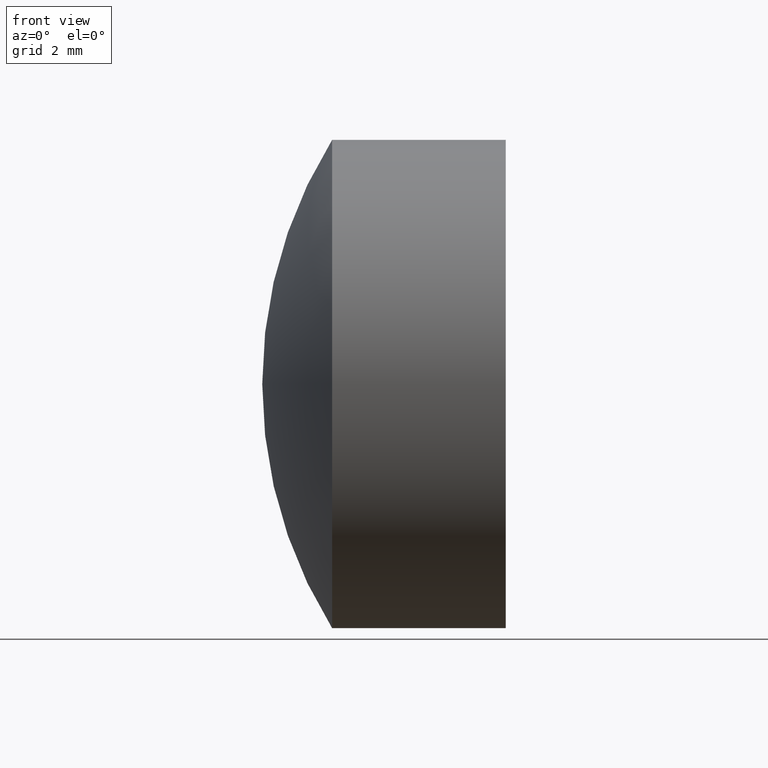
[diagram: clean part render]
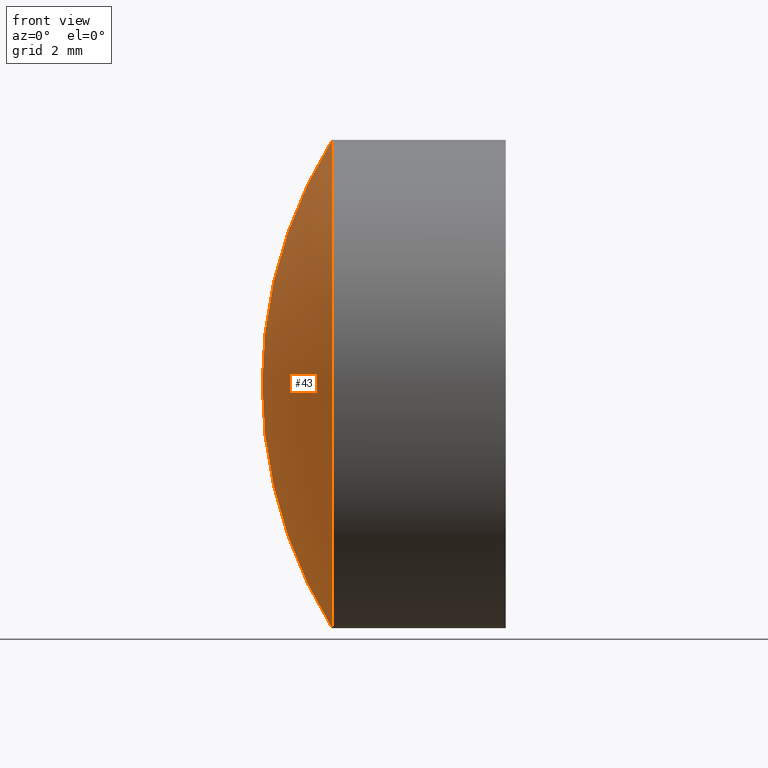
[diagram: same view with one face highlighted and labeled with its STEP entity id]
A machine part, front view. The second image highlights one B-rep face of the part: STEP entity #43.
In plain terms, the highlighted spherical surface has radius 12 mm.
Its self-contained STEP definition (entity closure, byte-faithful):
#4 = ORIENTED_EDGE ( 'NONE', *, *, #319, .T. ) ;
#6 = EDGE_CURVE ( 'NONE', #137, #88, #71, .T. ) ;
#8 = FACE_OUTER_BOUND ( 'NONE', #107, .T. ) ;
#9 = DIRECTION ( 'NONE',  ( 0.0000000000000000000, 1.224646799147353200E-016, -1.000000000000000000 ) ) ;
#10 = EDGE_CURVE ( 'NONE', #137, #84, #11, .T. ) ;
#11 = CIRCLE ( 'NONE', #161, 6.350000000000004100 ) ;
#43 = ADVANCED_FACE ( 'NONE', ( #8 ), #330, .T. ) ;
#65 = AXIS2_PLACEMENT_3D ( 'NONE', #91, #94, #338 ) ;
#71 = CIRCLE ( 'NONE', #65, 12.00000000000000200 ) ;
#78 = ORIENTED_EDGE ( 'NONE', *, *, #10, .T. ) ;
#84 = VERTEX_POINT ( 'NONE', #153 ) ;
#88 = VERTEX_POINT ( 'NONE', #234 ) ;
#91 = CARTESIAN_POINT ( 'NONE',  ( 32.52592517938953200, 0.0000000000000000000, 6.568687247857372100E-015 ) ) ;
#94 = DIRECTION ( 'NONE',  ( 0.0000000000000000000, 1.000000000000000000, -0.0000000000000000000 ) ) ;
#107 = EDGE_LOOP ( 'NONE', ( #78, #4, #334 ) ) ;
#137 = VERTEX_POINT ( 'NONE', #292 ) ;
#138 = CIRCLE ( 'NONE', #309, 12.00000000000000200 ) ;
#153 = CARTESIAN_POINT ( 'NONE',  ( 22.34371029263723700, -7.776507174585690200E-016, 6.350000000000005000 ) ) ;
#161 = AXIS2_PLACEMENT_3D ( 'NONE', #193, #283, #213 ) ;
#183 = AXIS2_PLACEMENT_3D ( 'NONE', #279, #208, #261 ) ;
#189 = CARTESIAN_POINT ( 'NONE',  ( 32.52592517938953200, 0.0000000000000000000, 6.568687247857372100E-015 ) ) ;
#193 = CARTESIAN_POINT ( 'NONE',  ( 22.34371029263723300, 0.0000000000000000000, 0.0000000000000000000 ) ) ;
#208 = DIRECTION ( 'NONE',  ( -0.0000000000000000000, -1.000000000000000000, -0.0000000000000000000 ) ) ;
#213 = DIRECTION ( 'NONE',  ( 0.0000000000000000000, 0.0000000000000000000, 1.000000000000000000 ) ) ;
#234 = CARTESIAN_POINT ( 'NONE',  ( 20.52592517938952500, 0.0000000000000000000, 5.833899168368960400E-015 ) ) ;
#261 = DIRECTION ( 'NONE',  ( 0.0000000000000000000, 0.0000000000000000000, -1.000000000000000000 ) ) ;
#279 = CARTESIAN_POINT ( 'NONE',  ( 32.52592517938953200, 0.0000000000000000000, 6.568687247857372100E-015 ) ) ;
#283 = DIRECTION ( 'NONE',  ( -1.000000000000000000, -0.0000000000000000000, -0.0000000000000000000 ) ) ;
#292 = CARTESIAN_POINT ( 'NONE',  ( 22.34371029263723700, 0.0000000000000000000, -6.349999999999997900 ) ) ;
#295 = DIRECTION ( 'NONE',  ( 0.0000000000000000000, -1.000000000000000000, -1.224646799147353200E-016 ) ) ;
#309 = AXIS2_PLACEMENT_3D ( 'NONE', #189, #295, #9 ) ;
#319 = EDGE_CURVE ( 'NONE', #84, #88, #138, .T. ) ;
#330 = SPHERICAL_SURFACE ( 'NONE', #183, 12.00000000000000200 ) ;
#334 = ORIENTED_EDGE ( 'NONE', *, *, #6, .F. ) ;
#338 = DIRECTION ( 'NONE',  ( 0.0000000000000000000, 0.0000000000000000000, 1.000000000000000000 ) ) ;